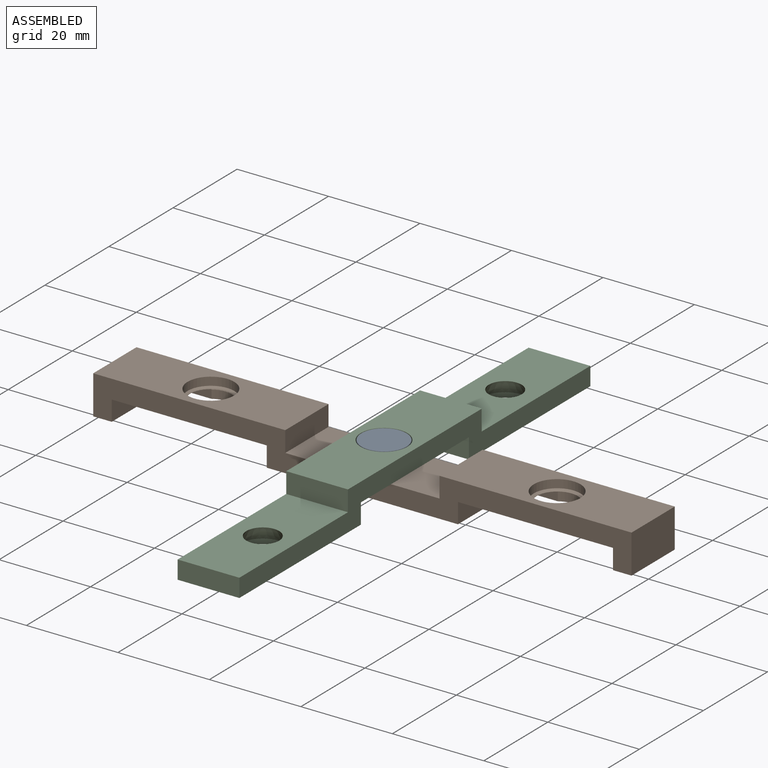
[diagram: assembled view]
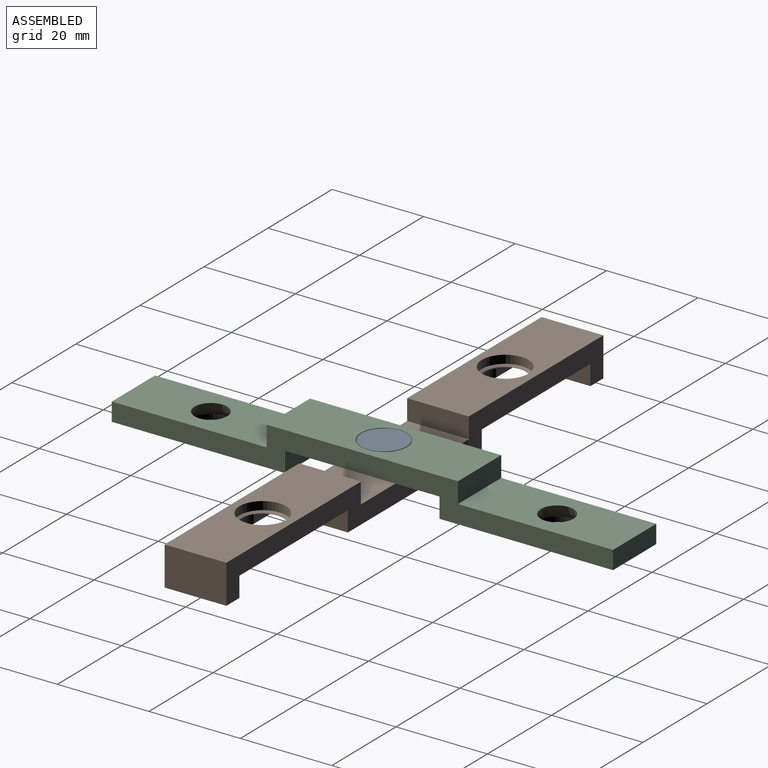
[diagram: assembled view, second angle]
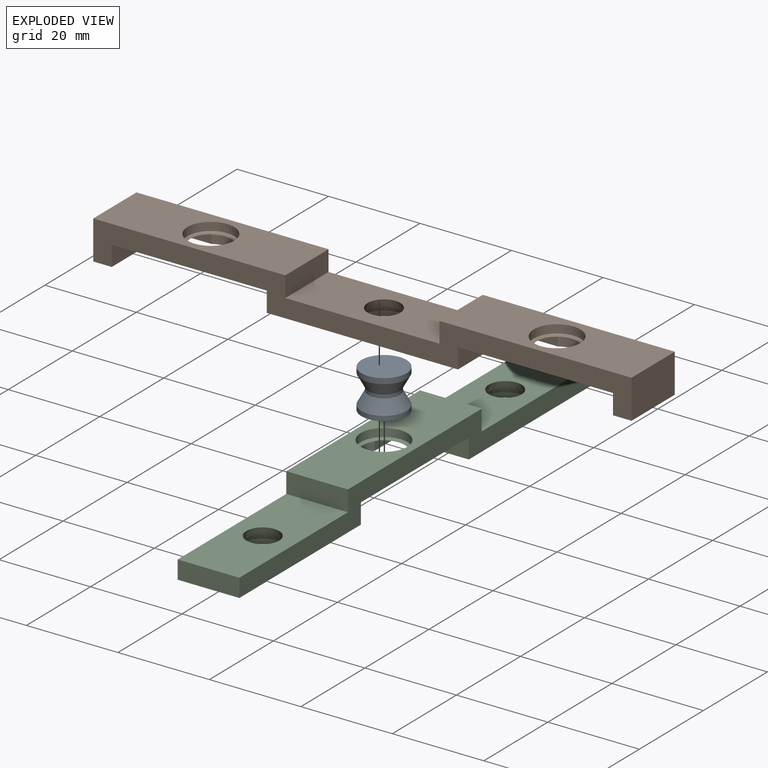
[diagram: exploded view]
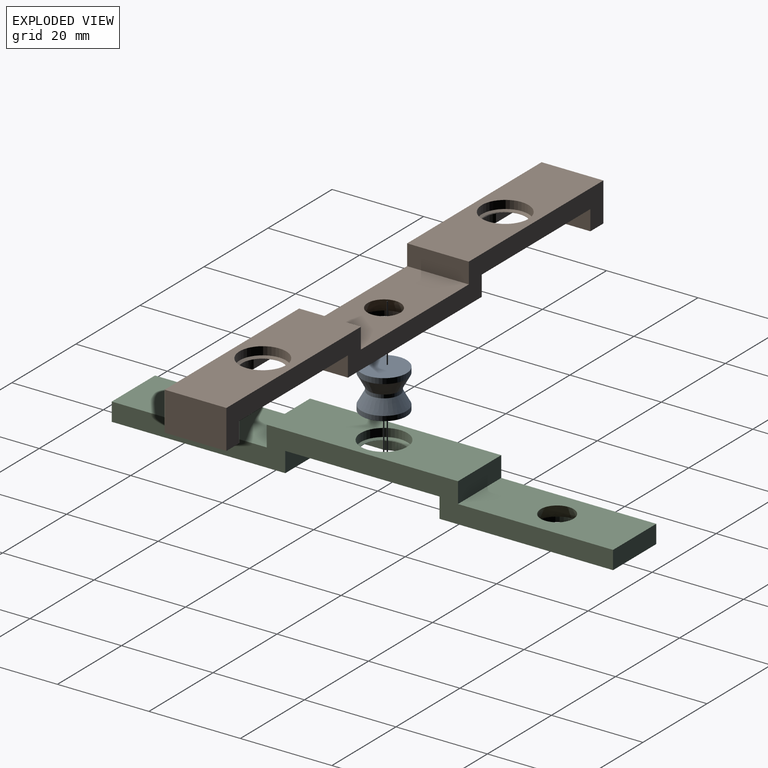
[diagram: exploded view, second angle]
ASSEMBLY  parts=3 mates=2
PART A: 7 faces, bbox 9.9x9.9x8.5 mm
  f0: plane 9.86x9.86mm, normal (0,0,1), area 76.4mm2, adj f1
  f1: cylinder r=4.93mm len=9.86mm, axis (0,0,1), area 36.4mm2, adj f0,f2
  f2: cone r=3.41mm half-angle=28.8deg, axis (0,0,1), area 82.6mm2, adj f1,f3
  f3: cylinder r=3.41mm len=6.83mm, axis (0,0,1), area 16.3mm2, adj f2,f4
  f4: cone r=4.93mm half-angle=28.8deg, axis (0,0,-1), area 82.6mm2, adj f3,f5
  f5: cylinder r=4.93mm len=9.86mm, axis (0,0,1), area 32.1mm2, adj f4,f6
  f6: plane 9.86x9.86mm, normal (0,0,-1), area 76.4mm2, adj f5
PART B: 43 faces, bbox 117.7x13.5x8.5 mm
  f0: cylinder r=4.5mm len=4.98mm, axis (0,0,-1), area 9.7mm2, adj f7,f8,f32,f42
  f1: plane 14.46x1.9mm, normal (0,-1,0), area 27.5mm2, adj f27,f28,f34,f40
  f2: plane 14.46x1.9mm, normal (0,-1,0), area 27.5mm2, adj f11,f26,f34,f40
  f3: plane 14.46x1.9mm, normal (0,1,0), area 27.5mm2, adj f27,f28,f33,f40
  f4: plane 14.46x1.9mm, normal (0,1,0), area 27.5mm2, adj f11,f26,f33,f40
  f5: plane 14.46x1.9mm, normal (0,-1,0), area 27.5mm2, adj f30,f31,f35,f41,f42
  f6: plane 14.46x1.9mm, normal (0,-1,0), area 27.5mm2, adj f12,f29,f35,f41,f42
  f7: plane 14.46x1.9mm, normal (0,1,0), area 27.5mm2, adj f0,f30,f31,f32,f42
  f8: plane 14.46x1.9mm, normal (0,1,0), area 27.5mm2, adj f0,f12,f29,f32,f42
  f9: cone r=0mm half-angle=59deg, axis (0,0,1), area 18.3mm2, adj f37,f42
  f10: cone r=0mm half-angle=59deg, axis (0,0,1), area 21.1mm2, adj f38,f40
  f11: plane 14.46x7.5mm, normal (0,0,-1), area 97.8mm2, adj f2,f4,f26,f40
  f12: plane 14.4x7.5mm, normal (0,0,-1), area 97.5mm2, adj f6,f8,f29,f42
  f13: cone r=0mm half-angle=59deg, axis (0,0,-1), area 2.5mm2, adj f36,f39
  f14: plane 41.8x13.5mm, normal (0,0,-1), area 482.6mm2, adj f17,f18,f26,f30,f36
  f15: plane 13.5x4.05mm, normal (0,0,-1), area 54.7mm2, adj f17,f18,f21,f27
  f16: plane 13.5x4.05mm, normal (0,0,-1), area 54.7mm2, adj f17,f18,f24,f29
  f17: plane 117.7x8.5mm, normal (0,1,0), area 550.5mm2, adj f14,f15,f16,f19,f20,f21,f22,f23
  f18: plane 117.7x8.5mm, normal (0,-1,0), area 550.5mm2, adj f14,f15,f16,f19,f20,f21,f22,f23
  f19: plane 33.7x13.5mm, normal (0,0,1), area 414.6mm2, adj f17,f18,f20,f23,f39
  f20: plane 13.5x4.5mm, normal (-1,0,0), area 60.8mm2, adj f17,f18,f19,f22
  f21: plane 13.5x8.5mm, normal (1,0,0), area 114.8mm2, adj f15,f17,f18,f22
  f22: plane 42x13.5mm, normal (0,0,1), area 485.3mm2, adj f17,f18,f20,f21,f38
  f23: plane 13.5x4.5mm, normal (1,0,0), area 60.7mm2, adj f17,f18,f19,f25
  f24: plane 13.5x8.5mm, normal (-1,0,0), area 114.8mm2, adj f16,f17,f18,f25
  f25: plane 42x13.5mm, normal (0,0,1), area 485.3mm2, adj f17,f18,f23,f24,f37
  f26: plane 13.5x6.3mm, normal (1,0,0), area 73.6mm2, adj f2,f4,f11,f14,f17,f18,f33,f34
  f27: plane 13.5x6.3mm, normal (-1,0,0), area 73.6mm2, adj f1,f3,f15,f17,f18,f28,f33,f34
  f28: plane 14.46x7.5mm, normal (0,0,-1), area 97.8mm2, adj f1,f3,f27,f40
  f29: plane 13.5x6.3mm, normal (1,0,0), area 73.6mm2, adj f6,f8,f12,f16,f17,f18,f32,f35
  f30: plane 13.5x6.3mm, normal (-1,0,0), area 73.6mm2, adj f5,f7,f14,f17,f18,f31,f32,f35
  f31: plane 14.4x7.5mm, normal (0,0,-1), area 97.5mm2, adj f5,f7,f30,f42
  f32: plane 33.9x3mm, normal (0,0,-1), area 99.2mm2, adj f0,f7,f8,f18,f29,f30
  f33: plane 33.9x3mm, normal (0,0,-1), area 99.2mm2, adj f3,f4,f18,f26,f27,f40
  f34: plane 33.9x3mm, normal (0,0,-1), area 99.2mm2, adj f1,f2,f17,f26,f27,f40
  f35: plane 33.9x3mm, normal (0,0,-1), area 99.2mm2, adj f5,f6,f17,f29,f30,f41
  f36: cylinder r=5.1mm len=10.2mm, axis (0,0,-1), area 35.2mm2, adj f13,f14
  f37: cylinder r=5.1mm len=10.2mm, axis (0,0,1), area 57.7mm2, adj f9,f25
  f38: cylinder r=5.1mm len=10.2mm, axis (0,0,1), area 57.7mm2, adj f10,f22
  f39: cone r=5.03mm half-angle=26.9deg, axis (0,0,-1), area 86.8mm2, adj f13,f19
  f40: cylinder r=4.5mm len=9mm, axis (0,0,-1), area 21.1mm2, adj f1,f2,f3,f4,f10,f11,f28,f33
  f41: cylinder r=4.5mm len=4.98mm, axis (0,0,-1), area 9.7mm2, adj f5,f6,f35,f42
  f42: cone r=4.59mm half-angle=29.5deg, axis (0,0,1), area 3.7mm2, adj f0,f5,f6,f7,f8,f9,f12,f31
PART C: 32 faces, bbox 109.6x13.5x8.5 mm
  f0: cylinder r=4.5mm len=4.98mm, axis (0,0,-1), area 9.7mm2, adj f1,f2,f23,f31
  f1: plane 14.36x1.9mm, normal (0,1,0), area 27.3mm2, adj f0,f21,f22,f23,f31
  f2: plane 14.36x1.9mm, normal (0,1,0), area 27.3mm2, adj f0,f8,f20,f23,f31
  f3: plane 14.36x1.9mm, normal (0,-1,0), area 27.3mm2, adj f21,f22,f24,f30,f31
  f4: plane 14.36x1.9mm, normal (0,-1,0), area 27.3mm2, adj f8,f20,f24,f30,f31
  f5: cone r=0mm half-angle=59deg, axis (0,0,1), area 18.3mm2, adj f27,f31
  f6: cone r=0mm half-angle=59deg, axis (0,0,-1), area 2.5mm2, adj f25,f29
  f7: cone r=0mm half-angle=59deg, axis (0,0,-1), area 2.5mm2, adj f26,f28
  f8: plane 14.3x7.5mm, normal (0,0,-1), area 96.8mm2, adj f2,f4,f20,f31
  f9: plane 37.95x13.5mm, normal (0,0,-1), area 430.6mm2, adj f11,f13,f16,f21,f25
  f10: plane 37.95x13.5mm, normal (0,0,-1), area 430.6mm2, adj f11,f12,f13,f20,f26
  f11: plane 109.6x8.5mm, normal (0,1,0), area 478.2mm2, adj f9,f10,f12,f14,f15,f16,f17,f18
  f12: plane 13.5x4mm, normal (-1,0,0), area 54mm2, adj f10,f11,f13,f14
  f13: plane 109.6x8.5mm, normal (0,-1,0), area 478.2mm2, adj f9,f10,f12,f14,f15,f16,f17,f18
  f14: plane 33.9x13.5mm, normal (0,0,1), area 417.3mm2, adj f11,f12,f13,f15,f28
  f15: plane 13.5x4.5mm, normal (-1,0,0), area 60.8mm2, adj f11,f13,f14,f19
  f16: plane 13.5x4mm, normal (1,0,0), area 54mm2, adj f9,f11,f13,f17
  f17: plane 33.9x13.5mm, normal (0,0,1), area 417.3mm2, adj f11,f13,f16,f18,f29
  f18: plane 13.5x4.5mm, normal (1,0,0), area 60.8mm2, adj f11,f13,f17,f19
  f19: plane 41.8x13.5mm, normal (0,0,1), area 482.6mm2, adj f11,f13,f15,f18,f27
  f20: plane 13.5x6.3mm, normal (1,0,0), area 73.6mm2, adj f2,f4,f8,f10,f11,f13,f23,f24
  f21: plane 13.5x6.3mm, normal (-1,0,0), area 73.7mm2, adj f1,f3,f9,f11,f13,f22,f23,f24
  f22: plane 14.3x7.5mm, normal (0,0,-1), area 96.8mm2, adj f1,f3,f21,f31
  f23: plane 33.7x3mm, normal (0,0,-1), area 98.6mm2, adj f0,f1,f2,f13,f20,f21
  f24: plane 33.7x3mm, normal (0,0,-1), area 98.6mm2, adj f3,f4,f11,f20,f21,f30
  f25: cylinder r=5.1mm len=10.2mm, axis (0,0,-1), area 35.2mm2, adj f6,f9
  f26: cylinder r=5.1mm len=10.2mm, axis (0,0,-1), area 35.2mm2, adj f7,f10
  f27: cylinder r=5.1mm len=10.2mm, axis (0,0,1), area 57.7mm2, adj f5,f19
  f28: cone r=5.03mm half-angle=26.9deg, axis (0,0,-1), area 86.8mm2, adj f7,f14
  f29: cone r=5.03mm half-angle=26.9deg, axis (0,0,-1), area 86.8mm2, adj f6,f17
  f30: cylinder r=4.5mm len=4.98mm, axis (0,0,-1), area 9.7mm2, adj f3,f4,f24,f31
  f31: cone r=4.59mm half-angle=29.5deg, axis (0,0,1), area 3.7mm2, adj f0,f1,f2,f3,f4,f5,f8,f22
PLACE A t=(-19.2,21.94,30.08)mm
PLACE B t=(-78.05,15.19,25.83)mm
PLACE C rot(axis=(0,0,-1),90deg) t=(-25.95,80.79,25.83)mm
MATE revolute C.f0 <-> B.f13  axis (0,0,-1) through (-19.2,21.94,30.23)mm
MATE revolute A.f1 <-> C.f0  axis (0,0,1) through (-19.2,21.94,34.33)mm
